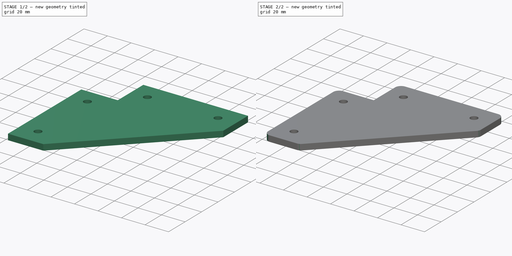
[diagram: build sequence overview — one tinted view per stage of 2, left to right]
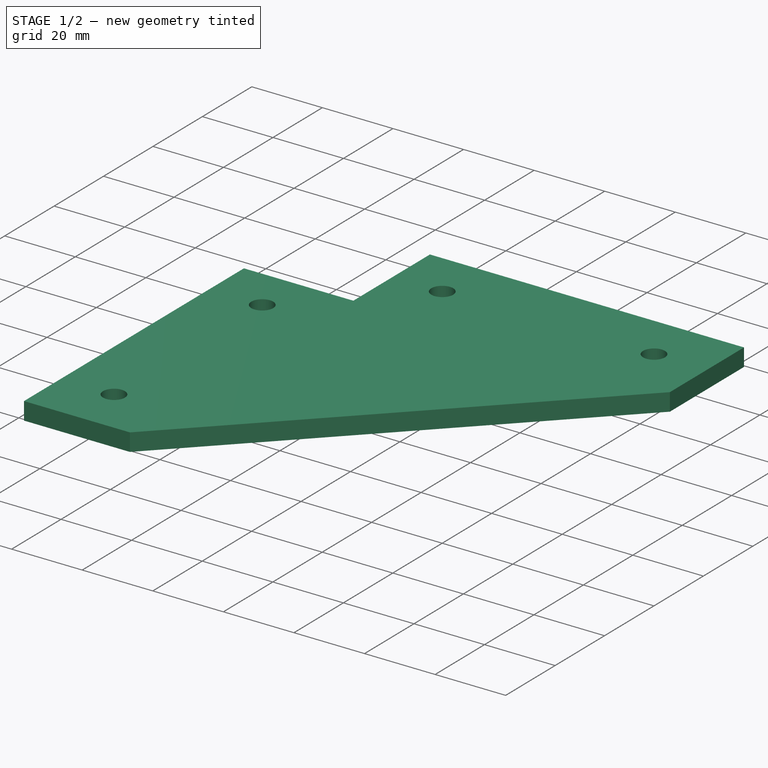
[diagram: stage 1 of 2 — iso view after this stage's code; geometry added in this stage tinted green]
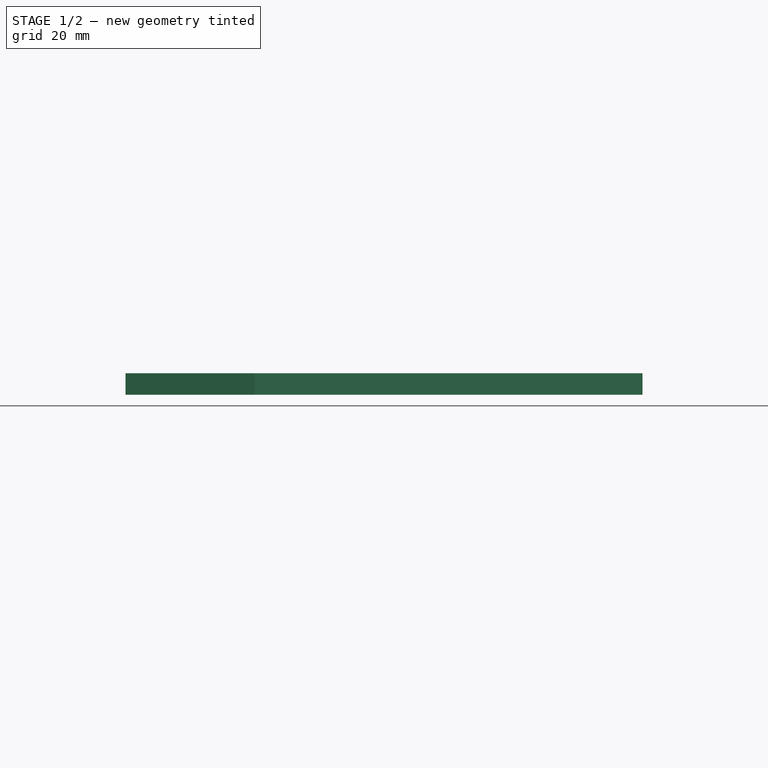
[diagram: stage 1 of 2 — front view after this stage's code; geometry added in this stage tinted green]
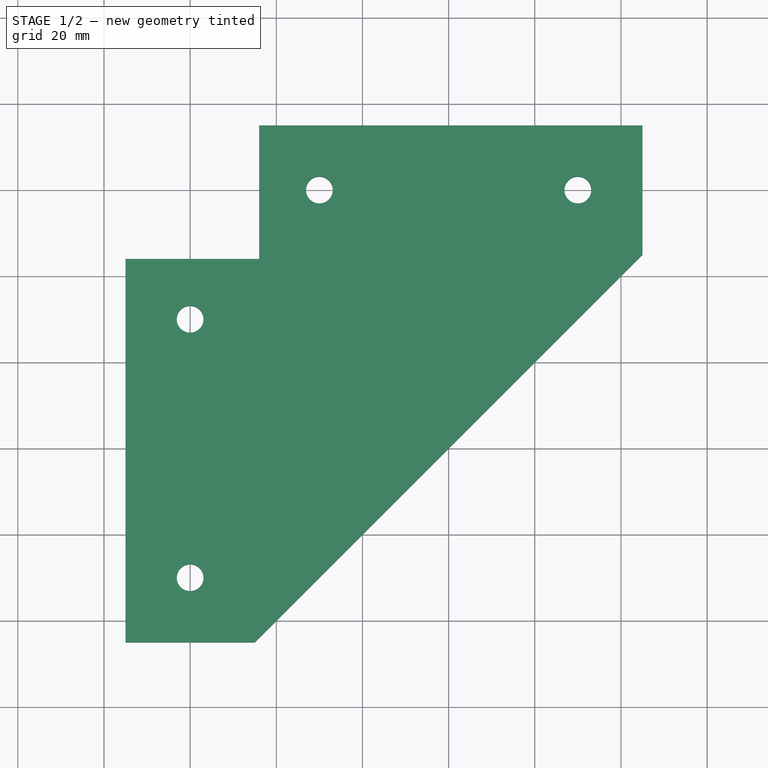
[diagram: stage 1 of 2 — top view after this stage's code; geometry added in this stage tinted green]
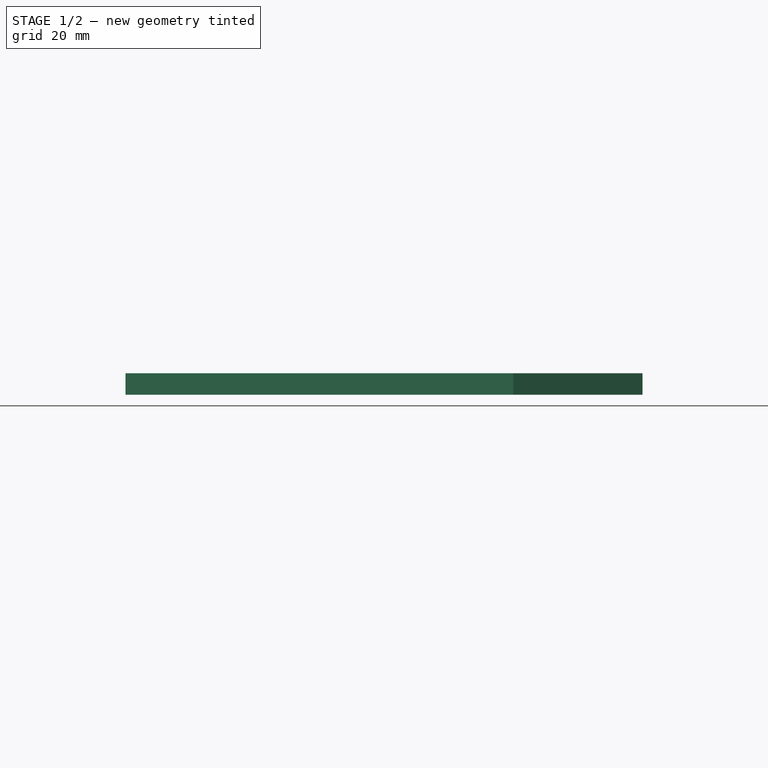
[diagram: stage 1 of 2 — right view after this stage's code; geometry added in this stage tinted green]
FCSTD DOCUMENT  (FreeCAD 0.19R20209 (Git))
Label: 90x90_trekant
License: Creative Commons Attribution
LicenseURL: http://creativecommons.org/licenses/by/4.0/
objects: Sketcher::SketchObject×1, PartDesign::Pad×1, PartDesign::Fillet×1, PartDesign::Body×1
note: 6 computed .brp shape members not serialized (recipe doc carries the construction recipe); baked Part::Feature solids carry a one-line shape summary decoded from their .brp

FEATURE [Sketcher::SketchObject] Sketch
  MapMode = 5
  Support = -> [XY_Plane]
  sketch-geometry (15):
    g0: LineSegment [constr] StartX=-16 StartY=16 StartZ=0 EndX=16 EndY=16 EndZ=0
    g1: LineSegment [constr] StartX=16 StartY=16 StartZ=0 EndX=16 EndY=-16 EndZ=0
    g2: LineSegment [constr] StartX=16 StartY=-16 StartZ=0 EndX=-16 EndY=-16 EndZ=0
    g3: LineSegment [constr] StartX=-16 StartY=-16 StartZ=0 EndX=-16 EndY=16 EndZ=0
    g4: LineSegment StartX=16 StartY=15 StartZ=0 EndX=105 EndY=15 EndZ=0
    g5: LineSegment StartX=105 StartY=15 StartZ=0 EndX=105 EndY=-15 EndZ=0
    g6: LineSegment StartX=105 StartY=-15 StartZ=0 EndX=15 EndY=-105 EndZ=0
    g7: LineSegment StartX=15 StartY=-105 StartZ=0 EndX=-15 EndY=-105 EndZ=0
    g8: LineSegment StartX=-15 StartY=-105 StartZ=0 EndX=-15 EndY=-16 EndZ=0
    g9: LineSegment StartX=-15 StartY=-16 StartZ=0 EndX=16 EndY=-16 EndZ=0
    g10: LineSegment StartX=16 StartY=-16 StartZ=0 EndX=16 EndY=15 EndZ=0
    g11: Circle CenterX=30 CenterY=0 CenterZ=0 NormalX=0 NormalY=0 NormalZ=1 AngleXU=0 Radius=3.1
    g12: Circle CenterX=90 CenterY=0 CenterZ=0 NormalX=0 NormalY=0 NormalZ=1 AngleXU=0 Radius=3.1
    g13: Circle CenterX=0 CenterY=-30 CenterZ=0 NormalX=0 NormalY=0 NormalZ=1 AngleXU=0 Radius=3.1
    g14: Circle CenterX=0 CenterY=-90 CenterZ=0 NormalX=0 NormalY=0 NormalZ=1 AngleXU=0 Radius=3.1
  constraints (43):
    c: Coincident(g0,g1)
    c: Coincident(g1,g2)
    c: Coincident(g2,g3)
    c: Coincident(g3,g0)
    c: Horizontal(g0)
    c: Horizontal(g2)
    c: Vertical(g1)
    c: Vertical(g3)
    c: Equal(g1,g0)
    c: DistanceX(g0,g0) = 32
    c: Symmetric(g0,g1,g-1)
    c: Horizontal(g4)
    c: Coincident(g4,g5)
    c: Vertical(g5)
    c: Coincident(g5,g6)
    c: Coincident(g6,g7)
    c: Horizontal(g7)
    c: Coincident(g7,g8)
    c: Vertical(g8)
    c: Coincident(g8,g9)
    c: Horizontal(g9)
    c: Coincident(g10,g4)
    c: DistanceY(g-1,g4) = 15
    c: DistanceX(g8,g-1) = 15
    c: Equal(g5,g7)
    c: DistanceX(g7,g7) = 30
    c: Coincident(g9,g10)
    c: Vertical(g10)
    c: Coincident(g9,g1)
    c: DistanceX(g-1,g4) = 105
    c: Equal(g4,g8)
    c: Equal(g14,g13)
    c: Equal(g13,g11)
    c: Equal(g11,g12)
    c: Diameter(g12) = 6.2
    c: PointOnObject(g11,g-1)
    c: PointOnObject(g12,g-1)
    c: DistanceX(g-1,g11) = 30
    c: DistanceX(g12,g4) = 15
    c: PointOnObject(g13,g-2)
    c: DistanceY(g13,g-1) = 30
    c: PointOnObject(g14,g-2)
    c: DistanceY(g7,g14) = 15
FEATURE [PartDesign::Pad] Pad
  Length = 5
  Length2 = 100
  Midplane = true
  Profile = -> Sketch
  Refine = true
  Type = 0
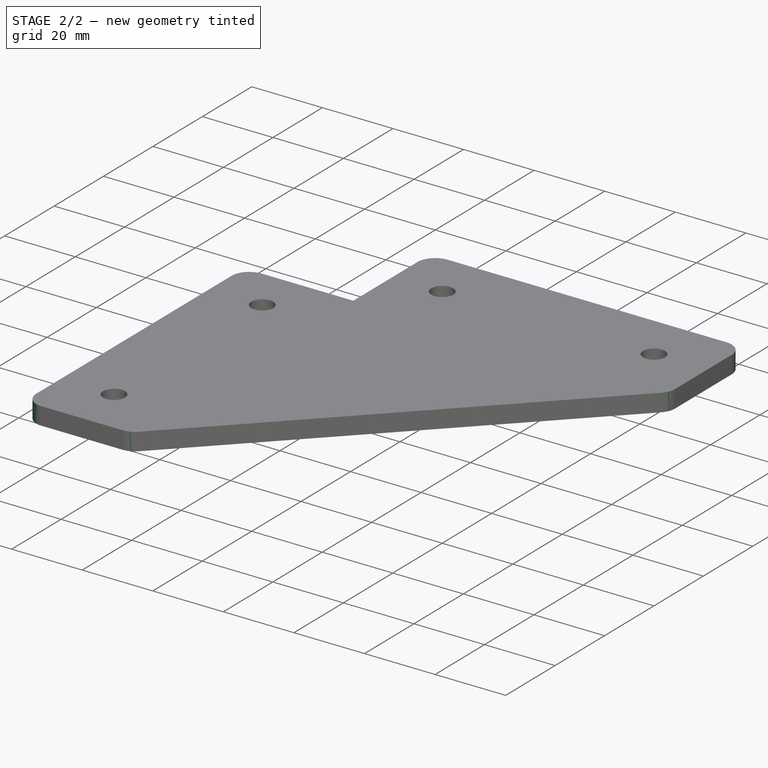
[diagram: stage 2 of 2 — iso view after this stage's code; geometry added in this stage tinted green]
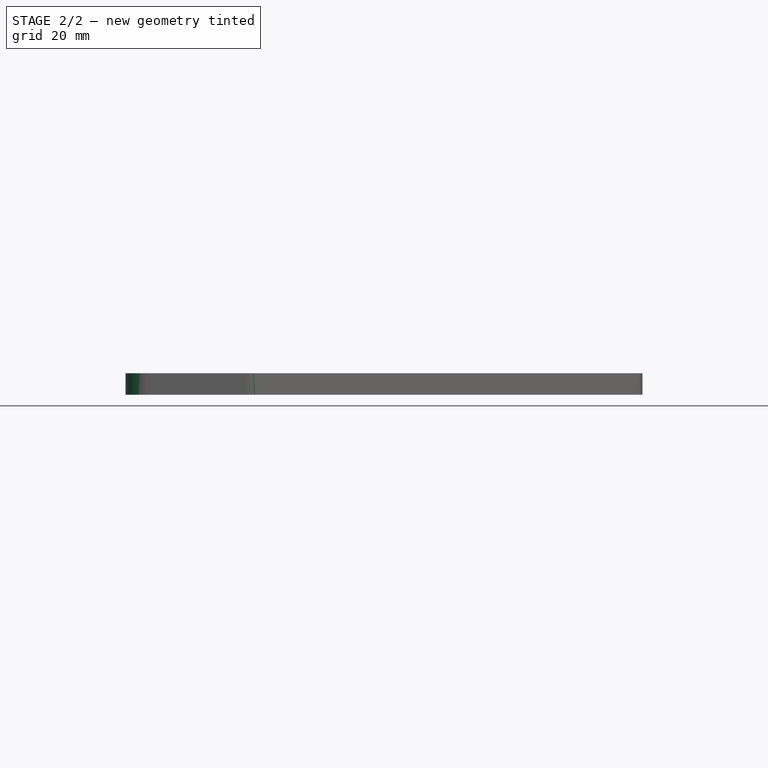
[diagram: stage 2 of 2 — front view after this stage's code; geometry added in this stage tinted green]
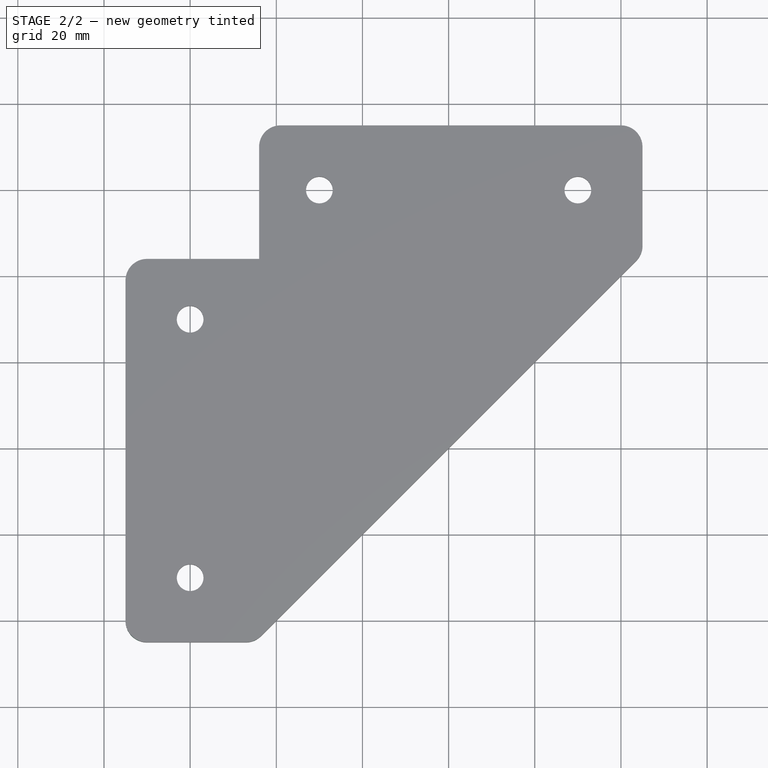
[diagram: stage 2 of 2 — top view after this stage's code; geometry added in this stage tinted green]
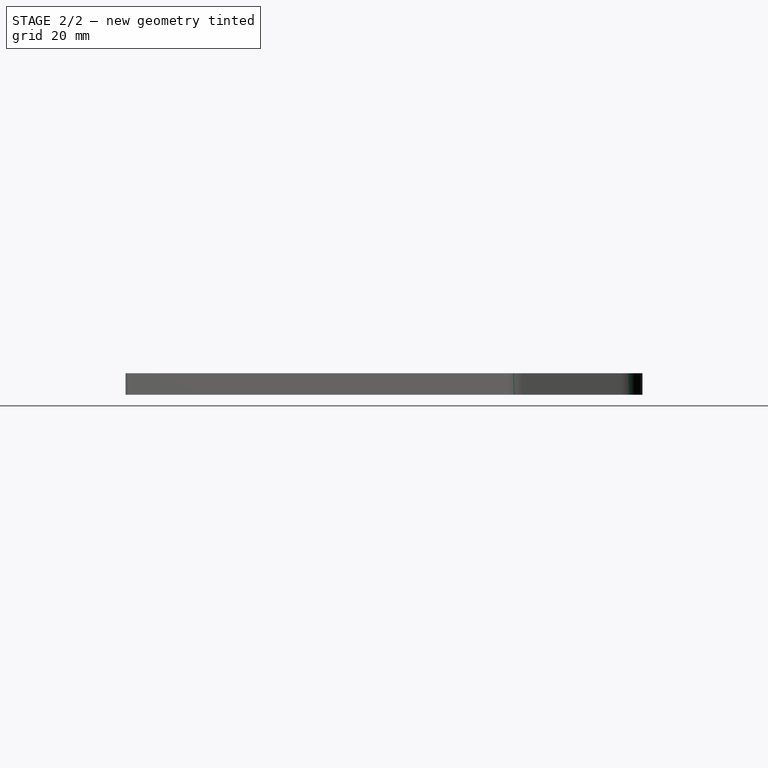
[diagram: stage 2 of 2 — right view after this stage's code; geometry added in this stage tinted green]
FEATURE [PartDesign::Fillet] Fillet
  Base = -> Pad [Edge11,Edge2,Edge8,Edge5,Edge1,Edge14]
  BaseFeature = -> Pad
  Radius = 5
  Refine = true
  SupportTransform = true
FEATURE [PartDesign::Body] Body
  Group = -> [Sketch,Pad,Fillet]
  Origin = -> Origin
  Tip = -> Fillet
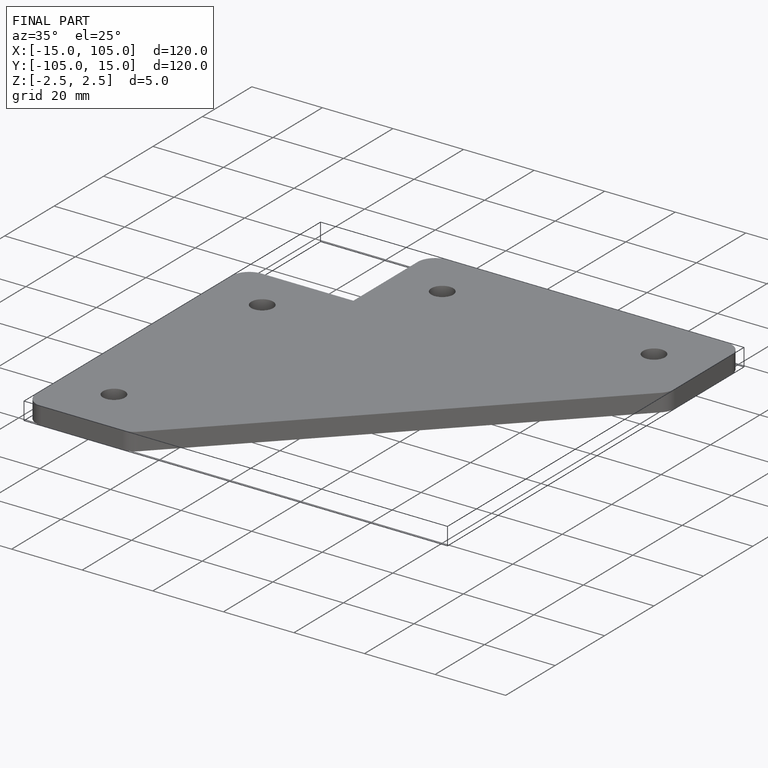
[diagram: finished part — iso view with bounding-box wireframe]
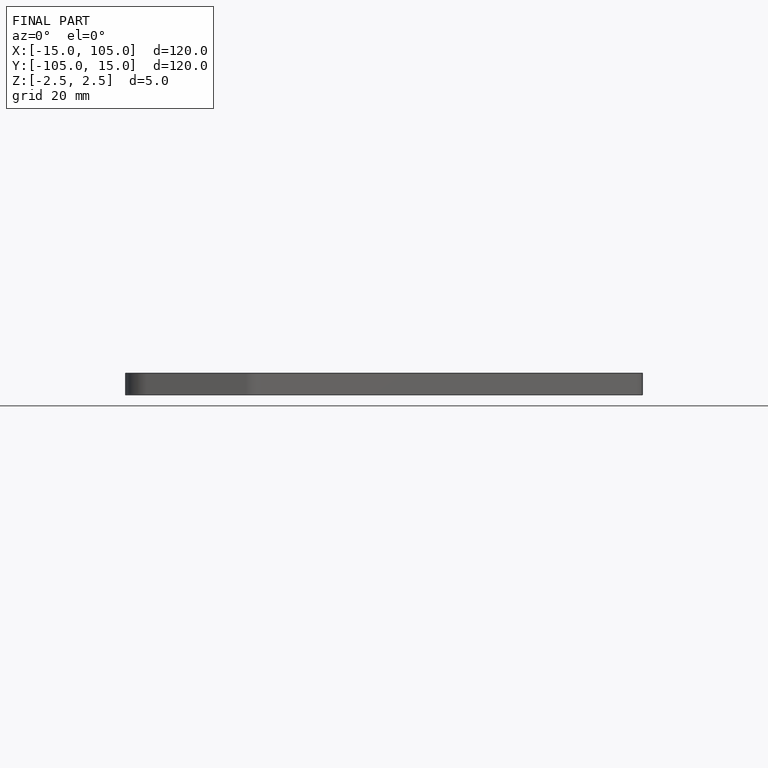
[diagram: finished part — front view with bounding-box wireframe]
